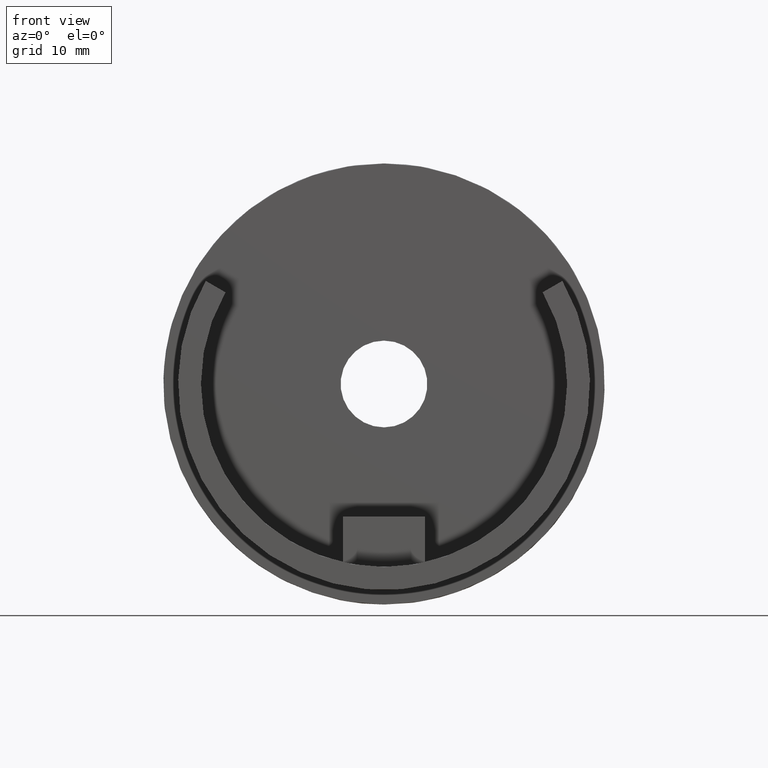
[diagram: clean part render]
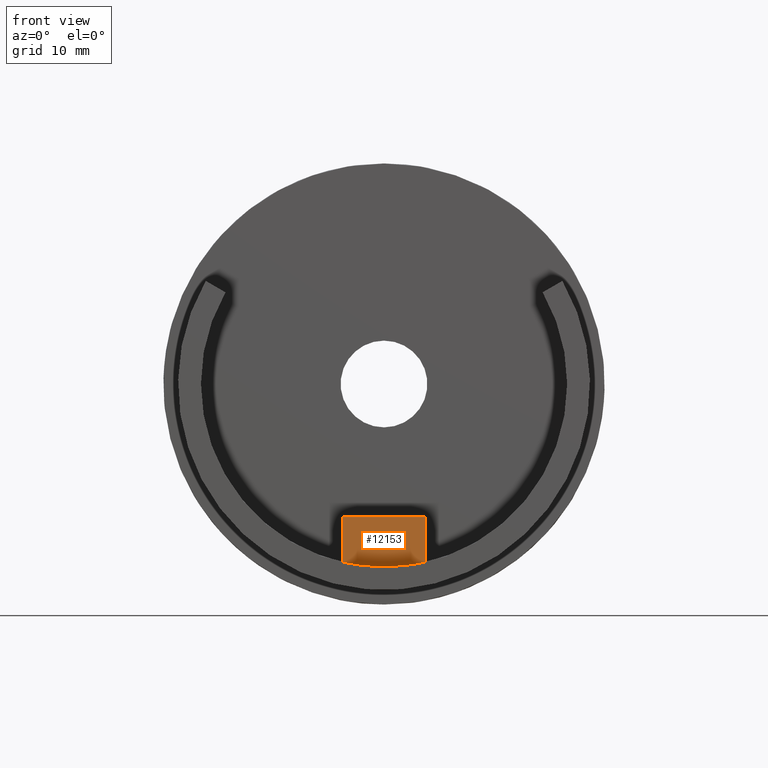
[diagram: same view with one face highlighted and labeled with its STEP entity id]
A machine part, front view. The second image highlights one B-rep face of the part: STEP entity #12153.
In plain terms, the highlighted planar face has unit normal (0, 1, 0).
Its self-contained STEP definition (entity closure, byte-faithful):
#168 = ORIENTED_EDGE ( 'NONE', *, *, #4321, .T. ) ;
#846 = VECTOR ( 'NONE', #12762, 1000.000000000000000 ) ;
#1159 = ORIENTED_EDGE ( 'NONE', *, *, #1515, .T. ) ;
#1383 = ORIENTED_EDGE ( 'NONE', *, *, #8319, .T. ) ;
#1515 = EDGE_CURVE ( 'NONE', #2862, #11506, #7354, .T. ) ;
#1722 = CARTESIAN_POINT ( 'NONE',  ( -4.500000000000000000, -20.00000000000000000, -14.55000000000001300 ) ) ;
#2451 = AXIS2_PLACEMENT_3D ( 'NONE', #12763, #9889, #5897 ) ;
#2531 = FACE_OUTER_BOUND ( 'NONE', #12032, .T. ) ;
#2646 = CARTESIAN_POINT ( 'NONE',  ( -4.500000000000000000, -20.00000000000000000, -14.55000000000001300 ) ) ;
#2801 = LINE ( 'NONE', #12691, #4527 ) ;
#2862 = VERTEX_POINT ( 'NONE', #10232 ) ;
#2950 = PLANE ( 'NONE',  #9406 ) ;
#3483 = LINE ( 'NONE', #2646, #846 ) ;
#4042 = DIRECTION ( 'NONE',  ( 0.0000000000000000000, 1.000000000000000000, 0.0000000000000000000 ) ) ;
#4321 = EDGE_CURVE ( 'NONE', #11506, #10348, #6960, .T. ) ;
#4527 = VECTOR ( 'NONE', #7728, 1000.000000000000000 ) ;
#4787 = DIRECTION ( 'NONE',  ( -0.0000000000000000000, -0.0000000000000000000, 1.000000000000000000 ) ) ;
#5047 = CARTESIAN_POINT ( 'NONE',  ( 0.0000000000000000000, -20.00000000000000000, 0.0000000000000000000 ) ) ;
#5114 = EDGE_CURVE ( 'NONE', #10348, #8023, #3483, .T. ) ;
#5897 = DIRECTION ( 'NONE',  ( 3.552713678800500900E-015, 0.0000000000000000000, 1.000000000000000000 ) ) ;
#6484 = CARTESIAN_POINT ( 'NONE',  ( 4.500000000000000000, -20.00000000000000000, -14.55000000000001300 ) ) ;
#6960 = LINE ( 'NONE', #6484, #9305 ) ;
#7354 = CIRCLE ( 'NONE', #2451, 20.05000000000001500 ) ;
#7728 = DIRECTION ( 'NONE',  ( -0.0000000000000000000, -0.0000000000000000000, -1.000000000000000000 ) ) ;
#8023 = VERTEX_POINT ( 'NONE', #1722 ) ;
#8319 = EDGE_CURVE ( 'NONE', #8023, #2862, #2801, .T. ) ;
#9305 = VECTOR ( 'NONE', #4787, 1000.000000000000000 ) ;
#9406 = AXIS2_PLACEMENT_3D ( 'NONE', #5047, #4042, #11940 ) ;
#9889 = DIRECTION ( 'NONE',  ( -0.0000000000000000000, -1.000000000000000000, -0.0000000000000000000 ) ) ;
#10232 = CARTESIAN_POINT ( 'NONE',  ( -4.500000000000000000, -20.00000000000000000, -19.53848765897710700 ) ) ;
#10348 = VERTEX_POINT ( 'NONE', #12926 ) ;
#10623 = ORIENTED_EDGE ( 'NONE', *, *, #5114, .T. ) ;
#11007 = CARTESIAN_POINT ( 'NONE',  ( 4.500000000000000000, -20.00000000000000000, -19.53848765897710700 ) ) ;
#11506 = VERTEX_POINT ( 'NONE', #11007 ) ;
#11940 = DIRECTION ( 'NONE',  ( 0.0000000000000000000, -0.0000000000000000000, 1.000000000000000000 ) ) ;
#12032 = EDGE_LOOP ( 'NONE', ( #1383, #1159, #168, #10623 ) ) ;
#12153 = ADVANCED_FACE ( 'NONE', ( #2531 ), #2950, .F. ) ;
#12691 = CARTESIAN_POINT ( 'NONE',  ( -4.500000000000000000, -20.00000000000000000, -21.05000000000001800 ) ) ;
#12762 = DIRECTION ( 'NONE',  ( -1.000000000000000000, -0.0000000000000000000, -0.0000000000000000000 ) ) ;
#12763 = CARTESIAN_POINT ( 'NONE',  ( 0.0000000000000000000, -20.00000000000000000, 0.0000000000000000000 ) ) ;
#12926 = CARTESIAN_POINT ( 'NONE',  ( 4.500000000000000000, -20.00000000000000000, -14.55000000000001300 ) ) ;